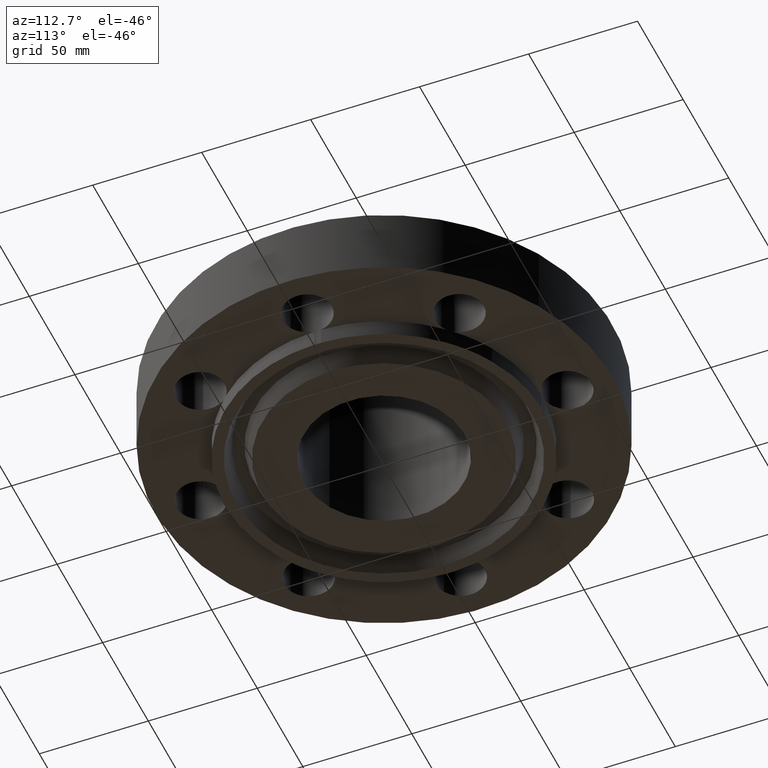
[diagram: clean part render]
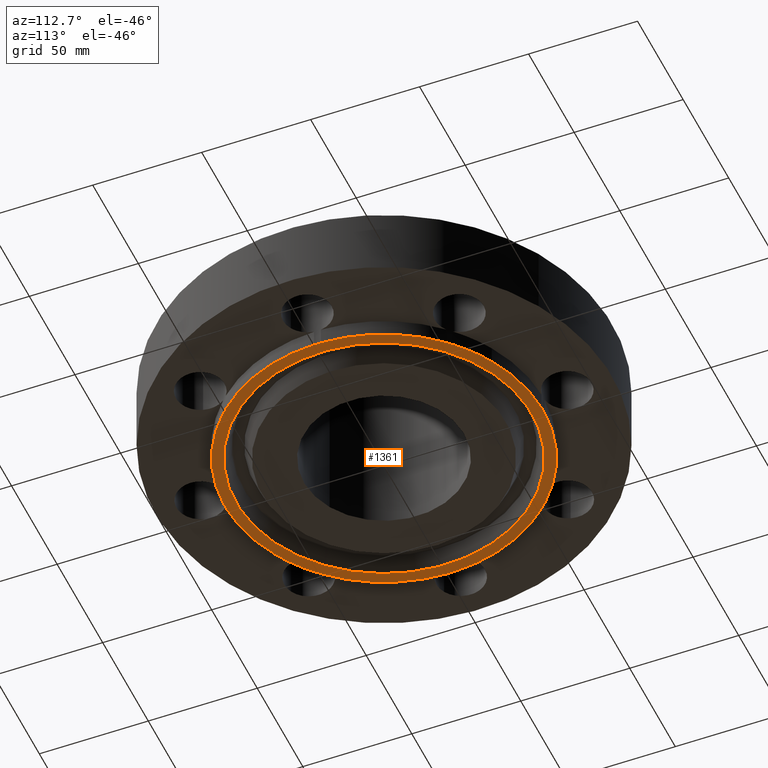
[diagram: same view with one face highlighted and labeled with its STEP entity id]
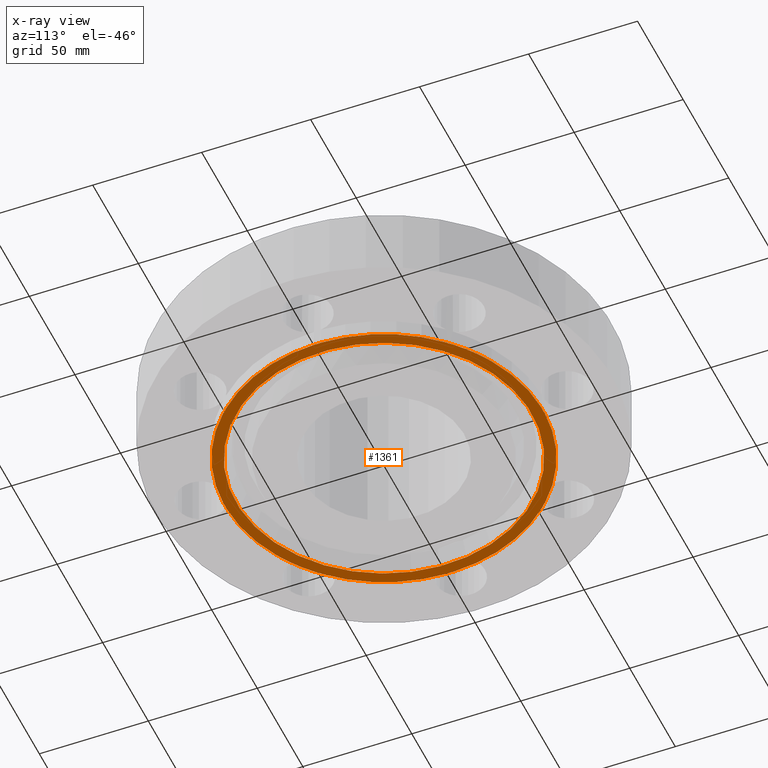
[diagram: x-ray of the same camera — body ghosted, the highlighted face saturated]
A machine part, auxiliary view. The second image highlights one B-rep face of the part: STEP entity #1361.
The next image is the same camera in x-ray: the body ghosted, the highlighted face saturated — about 0% of this face is hidden behind the body in this view.
In plain terms, the highlighted planar face has unit normal (0, 0, -1).
Its self-contained STEP definition (entity closure, byte-faithful):
#91=AXIS2_PLACEMENT_3D('Circle Axis2P3D',#89,#90,$) ;
#145=AXIS2_PLACEMENT_3D('Circle Axis2P3D',#143,#144,$) ;
#489=AXIS2_PLACEMENT_3D('Circle Axis2P3D',#487,#488,$) ;
#531=AXIS2_PLACEMENT_3D('Circle Axis2P3D',#529,#530,$) ;
#559=AXIS2_PLACEMENT_3D('Circle Axis2P3D',#557,#558,$) ;
#585=AXIS2_PLACEMENT_3D('Circle Axis2P3D',#583,#584,$) ;
#620=AXIS2_PLACEMENT_3D('Circle Axis2P3D',#618,#619,$) ;
#662=AXIS2_PLACEMENT_3D('Circle Axis2P3D',#660,#661,$) ;
#690=AXIS2_PLACEMENT_3D('Circle Axis2P3D',#688,#689,$) ;
#732=AXIS2_PLACEMENT_3D('Circle Axis2P3D',#730,#731,$) ;
#751=AXIS2_PLACEMENT_3D('Circle Axis2P3D',#749,#750,$) ;
#987=AXIS2_PLACEMENT_3D('Circle Axis2P3D',#985,#986,$) ;
#1039=AXIS2_PLACEMENT_3D('Circle Axis2P3D',#1037,#1038,$) ;
#1091=AXIS2_PLACEMENT_3D('Circle Axis2P3D',#1089,#1090,$) ;
#1143=AXIS2_PLACEMENT_3D('Circle Axis2P3D',#1141,#1142,$) ;
#1195=AXIS2_PLACEMENT_3D('Circle Axis2P3D',#1193,#1194,$) ;
#1247=AXIS2_PLACEMENT_3D('Circle Axis2P3D',#1245,#1246,$) ;
#1299=AXIS2_PLACEMENT_3D('Circle Axis2P3D',#1297,#1298,$) ;
#1321=AXIS2_PLACEMENT_3D('Plane Axis2P3D',#1318,#1319,#1320) ;
#1345=AXIS2_PLACEMENT_3D('Circle Axis2P3D',#1343,#1344,$) ;
#1354=AXIS2_PLACEMENT_3D('Circle Axis2P3D',#1352,#1353,$) ;
#86=CARTESIAN_POINT('Vertex',(0.0616409036851,2.87433912388,-0.313000000001)) ;
#89=CARTESIAN_POINT('Axis2P3D Location',(0.,3.31000000001,-0.313000000001)) ;
#93=CARTESIAN_POINT('Vertex',(-0.0616409036851,2.87433912388,-0.313000000001)) ;
#140=CARTESIAN_POINT('Vertex',(1.37834842349,2.52304986544,-0.313000000001)) ;
#143=CARTESIAN_POINT('Axis2P3D Location',(0.,0.,-0.313000000001)) ;
#487=CARTESIAN_POINT('Axis2P3D Location',(0.,0.,-0.313000000001)) ;
#491=CARTESIAN_POINT('Vertex',(-2.87433912388,0.0616409036851,-0.313000000001)) ;
#493=CARTESIAN_POINT('Vertex',(-2.07605138692,1.98887798493,-0.313000000001)) ;
#529=CARTESIAN_POINT('Axis2P3D Location',(0.,0.,-0.313000000001)) ;
#533=CARTESIAN_POINT('Vertex',(-1.98887798493,2.07605138692,-0.313000000001)) ;
#554=CARTESIAN_POINT('Vertex',(-2.87433912388,-0.0616409036851,-0.313000000001)) ;
#557=CARTESIAN_POINT('Axis2P3D Location',(0.,0.,-0.313000000001)) ;
#561=CARTESIAN_POINT('Vertex',(-2.07605138692,-1.98887798493,-0.313000000001)) ;
#583=CARTESIAN_POINT('Axis2P3D Location',(0.,0.,-0.313000000001)) ;
#587=CARTESIAN_POINT('Vertex',(-1.37834842349,-2.52304986544,-0.313000000001)) ;
#589=CARTESIAN_POINT('Vertex',(-1.98887798493,-2.07605138692,-0.313000000001)) ;
#618=CARTESIAN_POINT('Axis2P3D Location',(0.,0.,-0.313000000001)) ;
#622=CARTESIAN_POINT('Vertex',(1.98887798493,-2.07605138692,-0.313000000001)) ;
#624=CARTESIAN_POINT('Vertex',(0.0616409036851,-2.87433912388,-0.313000000001)) ;
#660=CARTESIAN_POINT('Axis2P3D Location',(0.,0.,-0.313000000001)) ;
#664=CARTESIAN_POINT('Vertex',(-0.0616409036851,-2.87433912388,-0.313000000001)) ;
#685=CARTESIAN_POINT('Vertex',(2.07605138692,-1.98887798493,-0.313000000001)) ;
#688=CARTESIAN_POINT('Axis2P3D Location',(0.,0.,-0.313000000001)) ;
#692=CARTESIAN_POINT('Vertex',(2.87433912388,-0.0616409036851,-0.313000000001)) ;
#727=CARTESIAN_POINT('Vertex',(2.87433912388,0.0616409036851,-0.313000000001)) ;
#730=CARTESIAN_POINT('Axis2P3D Location',(0.,0.,-0.313000000001)) ;
#734=CARTESIAN_POINT('Vertex',(2.07605138692,1.98887798493,-0.313000000001)) ;
#749=CARTESIAN_POINT('Axis2P3D Location',(0.,0.,-0.313000000001)) ;
#753=CARTESIAN_POINT('Vertex',(1.98887798493,2.07605138692,-0.313000000001)) ;
#985=CARTESIAN_POINT('Axis2P3D Location',(-2.34052344574,-2.34052344574,-0.313000000001)) ;
#1037=CARTESIAN_POINT('Axis2P3D Location',(4.05358090519E-016,-3.31000000001,-0.313000000001)) ;
#1089=CARTESIAN_POINT('Axis2P3D Location',(-3.31000000001,-6.08037135779E-016,-0.313000000001)) ;
#1141=CARTESIAN_POINT('Axis2P3D Location',(2.34052344574,2.34052344574,-0.313000000001)) ;
#1193=CARTESIAN_POINT('Axis2P3D Location',(2.34052344574,-2.34052344574,-0.313000000001)) ;
#1245=CARTESIAN_POINT('Axis2P3D Location',(3.31000000001,2.0267904526E-016,-0.313000000001)) ;
#1297=CARTESIAN_POINT('Axis2P3D Location',(-2.34052344574,2.34052344574,-0.313000000001)) ;
#1318=CARTESIAN_POINT('Axis2P3D Location',(0.,1.45000000001,-0.313000000001)) ;
#1343=CARTESIAN_POINT('Axis2P3D Location',(-2.79741234551E-016,0.,-0.313000000001)) ;
#1347=CARTESIAN_POINT('Vertex',(1.28102503916,-2.34490060538,-0.313000000001)) ;
#1349=CARTESIAN_POINT('Vertex',(-1.28102503916,2.34490060538,-0.313000000001)) ;
#1352=CARTESIAN_POINT('Axis2P3D Location',(0.,5.59482469102E-016,-0.313000000001)) ;
#90=DIRECTION('Axis2P3D Direction',(0.,-0.,-0.0393700787402)) ;
#144=DIRECTION('Axis2P3D Direction',(0.,0.,-0.0393700787402)) ;
#488=DIRECTION('Axis2P3D Direction',(0.,0.,-0.0393700787402)) ;
#530=DIRECTION('Axis2P3D Direction',(0.,0.,-0.0393700787402)) ;
#558=DIRECTION('Axis2P3D Direction',(0.,0.,-0.0393700787402)) ;
#584=DIRECTION('Axis2P3D Direction',(0.,0.,-0.0393700787402)) ;
#619=DIRECTION('Axis2P3D Direction',(0.,0.,-0.0393700787402)) ;
#661=DIRECTION('Axis2P3D Direction',(0.,0.,-0.0393700787402)) ;
#689=DIRECTION('Axis2P3D Direction',(0.,0.,-0.0393700787402)) ;
#731=DIRECTION('Axis2P3D Direction',(0.,0.,-0.0393700787402)) ;
#750=DIRECTION('Axis2P3D Direction',(0.,0.,-0.0393700787402)) ;
#986=DIRECTION('Axis2P3D Direction',(0.,0.,-0.0393700787402)) ;
#1038=DIRECTION('Axis2P3D Direction',(-0.,0.,-0.0393700787402)) ;
#1090=DIRECTION('Axis2P3D Direction',(0.,0.,-0.0393700787402)) ;
#1142=DIRECTION('Axis2P3D Direction',(0.,-0.,-0.0393700787402)) ;
#1194=DIRECTION('Axis2P3D Direction',(-0.,0.,-0.0393700787402)) ;
#1246=DIRECTION('Axis2P3D Direction',(0.,-0.,-0.0393700787402)) ;
#1298=DIRECTION('Axis2P3D Direction',(0.,0.,-0.0393700787402)) ;
#1319=DIRECTION('Axis2P3D Direction',(0.,0.,-0.0393700787402)) ;
#1320=DIRECTION('Axis2P3D XDirection',(0.0393700787402,0.,0.)) ;
#1344=DIRECTION('Axis2P3D Direction',(0.,0.,-0.0393700787402)) ;
#1353=DIRECTION('Axis2P3D Direction',(0.,0.,-0.0393700787402)) ;
#1324=ORIENTED_EDGE('',*,*,#736,.T.) ;
#1325=ORIENTED_EDGE('',*,*,#1249,.F.) ;
#1326=ORIENTED_EDGE('',*,*,#694,.T.) ;
#1327=ORIENTED_EDGE('',*,*,#1197,.F.) ;
#1328=ORIENTED_EDGE('',*,*,#626,.T.) ;
#1329=ORIENTED_EDGE('',*,*,#1041,.F.) ;
#1330=ORIENTED_EDGE('',*,*,#666,.T.) ;
#1331=ORIENTED_EDGE('',*,*,#591,.T.) ;
#1332=ORIENTED_EDGE('',*,*,#989,.F.) ;
#1333=ORIENTED_EDGE('',*,*,#563,.T.) ;
#1334=ORIENTED_EDGE('',*,*,#1093,.F.) ;
#1335=ORIENTED_EDGE('',*,*,#495,.T.) ;
#1336=ORIENTED_EDGE('',*,*,#1301,.F.) ;
#1337=ORIENTED_EDGE('',*,*,#535,.T.) ;
#1338=ORIENTED_EDGE('',*,*,#95,.F.) ;
#1339=ORIENTED_EDGE('',*,*,#147,.T.) ;
#1340=ORIENTED_EDGE('',*,*,#755,.T.) ;
#1341=ORIENTED_EDGE('',*,*,#1145,.F.) ;
#1358=ORIENTED_EDGE('',*,*,#1351,.F.) ;
#1359=ORIENTED_EDGE('',*,*,#1356,.F.) ;
#1360=FACE_BOUND('',#1357,.T.) ;
#1361=ADVANCED_FACE('PartBody',(#1342,#1360),#1322,.T.) ;
#92=CIRCLE('generated circle',#91,0.440000000002) ;
#146=CIRCLE('generated circle',#145,2.87500000001) ;
#490=CIRCLE('generated circle',#489,2.87500000001) ;
#532=CIRCLE('generated circle',#531,2.87500000001) ;
#560=CIRCLE('generated circle',#559,2.87500000001) ;
#586=CIRCLE('generated circle',#585,2.87500000001) ;
#621=CIRCLE('generated circle',#620,2.87500000001) ;
#663=CIRCLE('generated circle',#662,2.87500000001) ;
#691=CIRCLE('generated circle',#690,2.87500000001) ;
#733=CIRCLE('generated circle',#732,2.87500000001) ;
#752=CIRCLE('generated circle',#751,2.87500000001) ;
#988=CIRCLE('generated circle',#987,0.440000000002) ;
#1040=CIRCLE('generated circle',#1039,0.440000000002) ;
#1092=CIRCLE('generated circle',#1091,0.440000000002) ;
#1144=CIRCLE('generated circle',#1143,0.440000000002) ;
#1196=CIRCLE('generated circle',#1195,0.440000000002) ;
#1248=CIRCLE('generated circle',#1247,0.440000000002) ;
#1300=CIRCLE('generated circle',#1299,0.440000000002) ;
#1346=CIRCLE('generated circle',#1345,2.67200000001) ;
#1355=CIRCLE('generated circle',#1354,2.67200000001) ;
#95=EDGE_CURVE('',#87,#94,#92,.T.) ;
#147=EDGE_CURVE('',#87,#141,#146,.T.) ;
#495=EDGE_CURVE('',#492,#494,#490,.T.) ;
#535=EDGE_CURVE('',#534,#94,#532,.T.) ;
#563=EDGE_CURVE('',#562,#555,#560,.T.) ;
#591=EDGE_CURVE('',#588,#590,#586,.T.) ;
#626=EDGE_CURVE('',#623,#625,#621,.T.) ;
#666=EDGE_CURVE('',#665,#588,#663,.T.) ;
#694=EDGE_CURVE('',#693,#686,#691,.T.) ;
#736=EDGE_CURVE('',#735,#728,#733,.T.) ;
#755=EDGE_CURVE('',#141,#754,#752,.T.) ;
#989=EDGE_CURVE('',#562,#590,#988,.T.) ;
#1041=EDGE_CURVE('',#665,#625,#1040,.T.) ;
#1093=EDGE_CURVE('',#492,#555,#1092,.T.) ;
#1145=EDGE_CURVE('',#735,#754,#1144,.T.) ;
#1197=EDGE_CURVE('',#623,#686,#1196,.T.) ;
#1249=EDGE_CURVE('',#693,#728,#1248,.T.) ;
#1301=EDGE_CURVE('',#534,#494,#1300,.T.) ;
#1351=EDGE_CURVE('',#1348,#1350,#1346,.T.) ;
#1356=EDGE_CURVE('',#1350,#1348,#1355,.T.) ;
#1323=EDGE_LOOP('',(#1324,#1325,#1326,#1327,#1328,#1329,#1330,#1331,#1332,#1333,#1334,#1335,#1336,#1337,#1338,#1339,#1340,#1341)) ;
#1357=EDGE_LOOP('',(#1358,#1359)) ;
#1342=FACE_OUTER_BOUND('',#1323,.T.) ;
#1322=PLANE('',#1321) ;
#87=VERTEX_POINT('',#86) ;
#94=VERTEX_POINT('',#93) ;
#141=VERTEX_POINT('',#140) ;
#492=VERTEX_POINT('',#491) ;
#494=VERTEX_POINT('',#493) ;
#534=VERTEX_POINT('',#533) ;
#555=VERTEX_POINT('',#554) ;
#562=VERTEX_POINT('',#561) ;
#588=VERTEX_POINT('',#587) ;
#590=VERTEX_POINT('',#589) ;
#623=VERTEX_POINT('',#622) ;
#625=VERTEX_POINT('',#624) ;
#665=VERTEX_POINT('',#664) ;
#686=VERTEX_POINT('',#685) ;
#693=VERTEX_POINT('',#692) ;
#728=VERTEX_POINT('',#727) ;
#735=VERTEX_POINT('',#734) ;
#754=VERTEX_POINT('',#753) ;
#1348=VERTEX_POINT('',#1347) ;
#1350=VERTEX_POINT('',#1349) ;